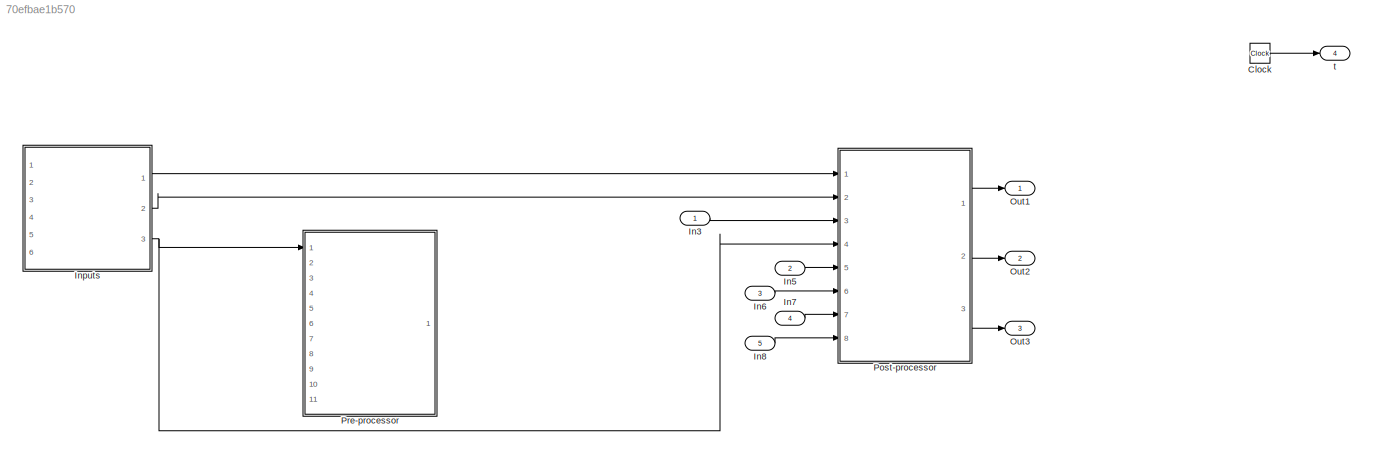
MODEL slx_70efbae1b570
KIND model
CONFIG AbsTol = auto
CONFIG FixedStep = auto
CONFIG MaxStep = auto
CONFIG MinStep = auto
CONFIG RelTol = 1e-3
CONFIG SampleTimeConstraint = Unconstrained
CONFIG Solver = VariableStepAuto
CONFIG SolverMode = Auto
CONFIG SolverName = VariableStepAuto
CONFIG StartTime = 0.0
CONFIG StopTime = 10.0
BLOCK [Clock] Clock
BLOCK [Inport] In3
  IconDisplay = Port number
BLOCK [Inport] In5
  IconDisplay = Port number
  Port = 2
BLOCK [Inport] In6
  IconDisplay = Port number
  Port = 3
BLOCK [Inport] In7
  IconDisplay = Port number
  Port = 4
BLOCK [Inport] In8
  IconDisplay = Port number
  Port = 5
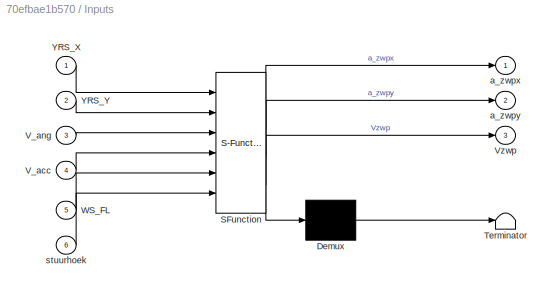
BLOCK [SubSystem] Inputs
  ErrorFcn = Stateflow.Translate.translate
  PermitHierarchicalResolution = ExplicitOnly
  Ports = [6, 3]
  RequestExecContextInheritance = off
  SFBlockType = MATLAB Function
  TreatAsAtomicUnit = on
  Variant = off
BLOCK [Demux] Inputs/ Demux 
  Outputs = 1
  Ports = [1, 1]
BLOCK [S-Function] Inputs/ SFunction 
  EnableBusSupport = off
  FunctionName = sf_sfun
  PortCounts = [6 4]
  Ports = [6, 4]
  SFunctionDeploymentMode = off
  Tag = Stateflow S-Function Controller_v2 4
BLOCK [Terminator] Inputs/ Terminator 
BLOCK [Inport] Inputs/V_acc
  IconDisplay = Port number
  Port = 4
BLOCK [Inport] Inputs/V_ang
  IconDisplay = Port number
  Port = 3
BLOCK [Outport] Inputs/Vzwp
  IconDisplay = Port number
  Port = 3
BLOCK [Inport] Inputs/WS_FL
  IconDisplay = Port number
  Port = 5
BLOCK [Inport] Inputs/YRS_X
  IconDisplay = Port number
BLOCK [Inport] Inputs/YRS_Y
  IconDisplay = Port number
  Port = 2
BLOCK [Outport] Inputs/a_zwpx
  IconDisplay = Port number
BLOCK [Outport] Inputs/a_zwpy
  IconDisplay = Port number
  Port = 2
BLOCK [Inport] Inputs/stuurhoek
  IconDisplay = Port number
  Port = 6
BLOCK [Outport] Out1
  IconDisplay = Port number
BLOCK [Outport] Out2
  IconDisplay = Port number
  Port = 2
BLOCK [Outport] Out3
  IconDisplay = Port number
  Port = 3
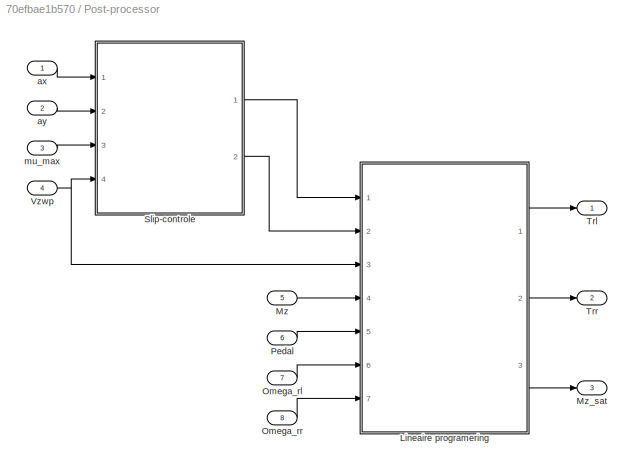
BLOCK [SubSystem] Post-processor
  Ports = [8, 3]
  RequestExecContextInheritance = off
  Variant = off
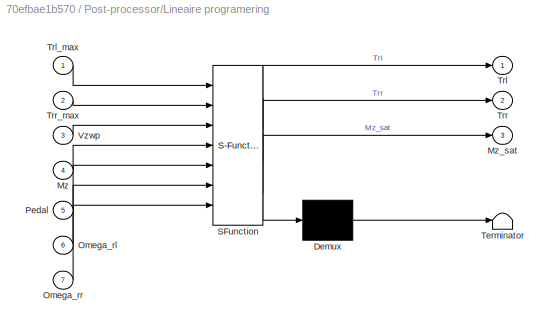
BLOCK [SubSystem] Post-processor/Lineaire programering
  ErrorFcn = Stateflow.Translate.translate
  PermitHierarchicalResolution = ExplicitOnly
  Ports = [7, 3]
  RequestExecContextInheritance = off
  SFBlockType = MATLAB Function
  TreatAsAtomicUnit = on
  Variant = off
BLOCK [Demux] Post-processor/Lineaire programering/ Demux 
  Outputs = 1
  Ports = [1, 1]
BLOCK [S-Function] Post-processor/Lineaire programering/ SFunction 
  EnableBusSupport = off
  FunctionName = sf_sfun
  PortCounts = [7 4]
  Ports = [7, 4]
  SFunctionDeploymentMode = off
  Tag = Stateflow S-Function Controller_v2 1
BLOCK [Terminator] Post-processor/Lineaire programering/ Terminator 
BLOCK [Inport] Post-processor/Lineaire programering/Mz
  IconDisplay = Port number
  Port = 4
BLOCK [Outport] Post-processor/Lineaire programering/Mz_sat
  IconDisplay = Port number
  Port = 3
BLOCK [Inport] Post-processor/Lineaire programering/Omega_rl
  IconDisplay = Port number
  Port = 6
BLOCK [Inport] Post-processor/Lineaire programering/Omega_rr
  IconDisplay = Port number
  Port = 7
BLOCK [Inport] Post-processor/Lineaire programering/Pedal
  IconDisplay = Port number
  Port = 5
BLOCK [Outport] Post-processor/Lineaire programering/Trl
  IconDisplay = Port number
BLOCK [Inport] Post-processor/Lineaire programering/Trl_max
  IconDisplay = Port number
BLOCK [Outport] Post-processor/Lineaire programering/Trr
  IconDisplay = Port number
  Port = 2
BLOCK [Inport] Post-processor/Lineaire programering/Trr_max
  IconDisplay = Port number
  Port = 2
BLOCK [Inport] Post-processor/Lineaire programering/Vzwp
  IconDisplay = Port number
  Port = 3
BLOCK [Inport] Post-processor/Mz
  IconDisplay = Port number
  Port = 5
BLOCK [Outport] Post-processor/Mz_sat
  IconDisplay = Port number
  Port = 3
BLOCK [Inport] Post-processor/Omega_rl
  IconDisplay = Port number
  Port = 7
BLOCK [Inport] Post-processor/Omega_rr
  IconDisplay = Port number
  Port = 8
BLOCK [Inport] Post-processor/Pedal
  IconDisplay = Port number
  Port = 6
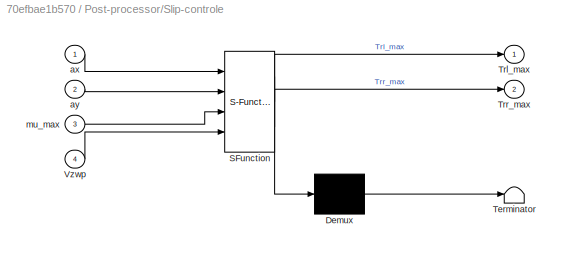
BLOCK [SubSystem] Post-processor/Slip-controle 
  ErrorFcn = Stateflow.Translate.translate
  PermitHierarchicalResolution = ExplicitOnly
  Ports = [4, 2]
  RequestExecContextInheritance = off
  SFBlockType = MATLAB Function
  TreatAsAtomicUnit = on
  Variant = off
BLOCK [Demux] Post-processor/Slip-controle / Demux 
  Outputs = 1
  Ports = [1, 1]
BLOCK [S-Function] Post-processor/Slip-controle / SFunction 
  EnableBusSupport = off
  FunctionName = sf_sfun
  PortCounts = [4 3]
  Ports = [4, 3]
  SFunctionDeploymentMode = off
  Tag = Stateflow S-Function Controller_v2 2
BLOCK [Terminator] Post-processor/Slip-controle / Terminator 
BLOCK [Outport] Post-processor/Slip-controle /Trl_max
  IconDisplay = Port number
BLOCK [Outport] Post-processor/Slip-controle /Trr_max
  IconDisplay = Port number
  Port = 2
BLOCK [Inport] Post-processor/Slip-controle /Vzwp
  IconDisplay = Port number
  Port = 4
BLOCK [Inport] Post-processor/Slip-controle /ax
  IconDisplay = Port number
BLOCK [Inport] Post-processor/Slip-controle /ay
  IconDisplay = Port number
  Port = 2
BLOCK [Inport] Post-processor/Slip-controle /mu_max
  IconDisplay = Port number
  Port = 3
BLOCK [Outport] Post-processor/Trl
  IconDisplay = Port number
BLOCK [Outport] Post-processor/Trr
  IconDisplay = Port number
  Port = 2
BLOCK [Inport] Post-processor/Vzwp
  IconDisplay = Port number
  Port = 4
BLOCK [Inport] Post-processor/ax
  IconDisplay = Port number
BLOCK [Inport] Post-processor/ay
  IconDisplay = Port number
  Port = 2
BLOCK [Inport] Post-processor/mu_max
  IconDisplay = Port number
  Port = 3
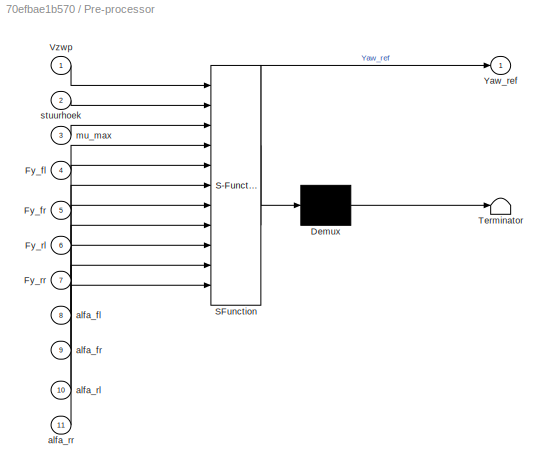
BLOCK [SubSystem] Pre-processor
  ErrorFcn = Stateflow.Translate.translate
  PermitHierarchicalResolution = ExplicitOnly
  Ports = [11, 1]
  RequestExecContextInheritance = off
  SFBlockType = MATLAB Function
  TreatAsAtomicUnit = on
  Variant = off
BLOCK [Demux] Pre-processor/ Demux 
  Outputs = 1
  Ports = [1, 1]
BLOCK [S-Function] Pre-processor/ SFunction 
  EnableBusSupport = off
  FunctionName = sf_sfun
  PortCounts = [11 2]
  Ports = [11, 2]
  SFunctionDeploymentMode = off
  Tag = Stateflow S-Function Controller_v2 3
BLOCK [Terminator] Pre-processor/ Terminator 
BLOCK [Inport] Pre-processor/Fy_fl
  IconDisplay = Port number
  Port = 4
BLOCK [Inport] Pre-processor/Fy_fr
  IconDisplay = Port number
  Port = 5
BLOCK [Inport] Pre-processor/Fy_rl
  IconDisplay = Port number
  Port = 6
BLOCK [Inport] Pre-processor/Fy_rr
  IconDisplay = Port number
  Port = 7
BLOCK [Inport] Pre-processor/Vzwp
  IconDisplay = Port number
BLOCK [Outport] Pre-processor/Yaw_ref
  IconDisplay = Port number
BLOCK [Inport] Pre-processor/alfa_fl
  IconDisplay = Port number
  Port = 8
BLOCK [Inport] Pre-processor/alfa_fr
  IconDisplay = Port number
  Port = 9
BLOCK [Inport] Pre-processor/alfa_rl
  IconDisplay = Port number
  Port = 10
BLOCK [Inport] Pre-processor/alfa_rr
  IconDisplay = Port number
  Port = 11
BLOCK [Inport] Pre-processor/mu_max
  IconDisplay = Port number
  Port = 3
BLOCK [Inport] Pre-processor/stuurhoek
  IconDisplay = Port number
  Port = 2
BLOCK [Outport] t
  IconDisplay = Port number
  Port = 4
LINE Clock:1 -> t:1
LINE In3:1 -> Post-processor:3
LINE In5:1 -> Post-processor:5
LINE In6:1 -> Post-processor:6
LINE In7:1 -> Post-processor:7
LINE In8:1 -> Post-processor:8
LINE Inputs:1 -> Post-processor:1
LINE Inputs:2 -> Post-processor:2
NET Inputs:3 -> Post-processor:4, Pre-processor:1
LINE Post-processor/Lineaire programering:1 -> Post-processor/Trl:1
LINE Post-processor/Lineaire programering:2 -> Post-processor/Trr:1
LINE Post-processor/Lineaire programering:3 -> Post-processor/Mz_sat:1
LINE Post-processor/Mz:1 -> Post-processor/Lineaire programering:4
LINE Post-processor/Omega_rl:1 -> Post-processor/Lineaire programering:6
LINE Post-processor/Omega_rr:1 -> Post-processor/Lineaire programering:7
LINE Post-processor/Pedal:1 -> Post-processor/Lineaire programering:5
LINE Post-processor/Slip-controle :1 -> Post-processor/Lineaire programering:1
LINE Post-processor/Slip-controle :2 -> Post-processor/Lineaire programering:2
NET Post-processor/Vzwp:1 -> Post-processor/Lineaire programering:3, Post-processor/Slip-controle :4
LINE Post-processor/ax:1 -> Post-processor/Slip-controle :1
LINE Post-processor/ay:1 -> Post-processor/Slip-controle :2
LINE Post-processor/mu_max:1 -> Post-processor/Slip-controle :3
LINE Post-processor:1 -> Out1:1
LINE Post-processor:2 -> Out2:1
LINE Post-processor:3 -> Out3:1
note: NET lines group one-source signal fan-out (src -> all destinations, sorted); 1:1 wires keep LINE
CHART Post-processor/Lineaire programering states=1 transitions=1
  STATE_LABEL 'eML_blk_kernel()'
  STATE_LABEL 'SCRIPT:\nfunction [Trl,Trr,Mz_sat] = Lineaire_programmering(Trl_max,Trr_max,Vzwp,Mz,Pedal,Omega_rl,Omega_rr)\n%Deze blok staat in voor het berekenen van de te leveren torque per wiel\n%aan de hand van twee lineaire doelen. Het eerste doel is het netto moment\n%rond het zwaartepunt optimaliseren. Het tweede doel is de torque die wordt\n%overgedragen op het wegdek optimaliseren.\n\n%Gevraagd Moment\nTV_cont...<+704ch>'
CHART Post-processor/Slip-controle
 states=1 transitions=1
  STATE_LABEL 'eML_blk_kernel()'
  STATE_LABEL "SCRIPT:\nfunction [Trl_max,Trr_max] = Slip_controle(ax,ay,mu_max,Vzwp)\n% Berekening van de maximale torques die men kan toepassen op de wielen\n% door berekening van de normaalkrachten op de wielen.\n\nload('parameters.mat');\n\n%Wielbelastingen\n\n%Statische wielbelasting\nWs_fl = (Lf/(2*L))*M*g;\nWs_fr = Ws_fl;\nWs_rl = (Lr/(2*L))*M*g;\nWs_rr = Ws_rl;\n\nWs_f = Ws_fl + Ws_fr;\nWs_r = Ws_rl + Ws_rr;\n\n%Laterale ...<+1536ch>"
CHART Pre-processor states=1 transitions=1
  STATE_LABEL 'eML_blk_kernel()'
  STATE_LABEL "SCRIPT:\nfunction Yaw_ref = pre_processor(Vzwp,stuurhoek,mu_max,Fy_fl,Fy_fr,Fy_rl,Fy_rr,alfa_fl,alfa_fr,alfa_rl,alfa_rr)\n%De pre-processor berekend de gewenste yaw rate door het minimum te nemen\n%van de ideale en de maximale yaw rate waarde.\n\n%Berekening massa's\nMf = M*(Lr/L);\nMr = M*(Lf/L);\n\n%Berekening Cornering stiffness\nC_fl = (Fy_fl/alfa_fl);\nC_fr = (Fy_fr/alfa_fr);\nC_rl = (Fy_rl/alfa_rl);\nC_r...<+531ch>"
CHART Inputs states=1 transitions=1
  STATE_LABEL 'eML_blk_kernel()'
  STATE_LABEL 'SCRIPT:\nfunction [a_zwpx,a_zwpy,Vzwp]= Inputs(YRS_X,YRS_Y,V_ang,V_acc,WS_FL,stuurhoek)\n% hier zullen de inputs verwrkt worden die nodig zijn voor de aansturing van het controle algortihme\n    % YRS is de versnelling die gemeten word door de yaw-rate sensor\n    % V_ang is de hoeksnelheid       \n    % V_acc is de hoekversnelling\n% berekening van de versnelling van het zwaartepunt in de x-richting\na_...<+1164ch>'
